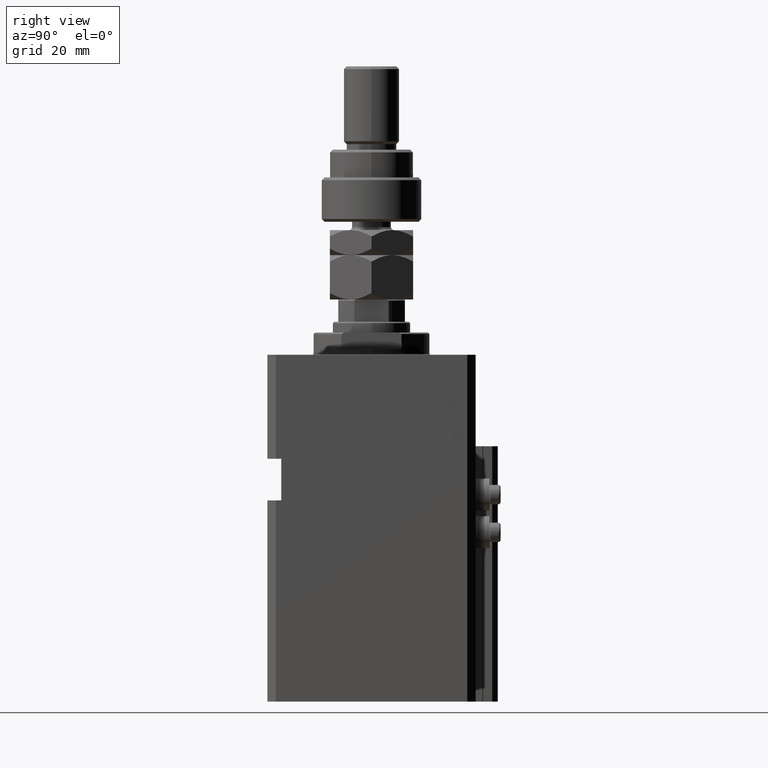
[diagram: clean part render]
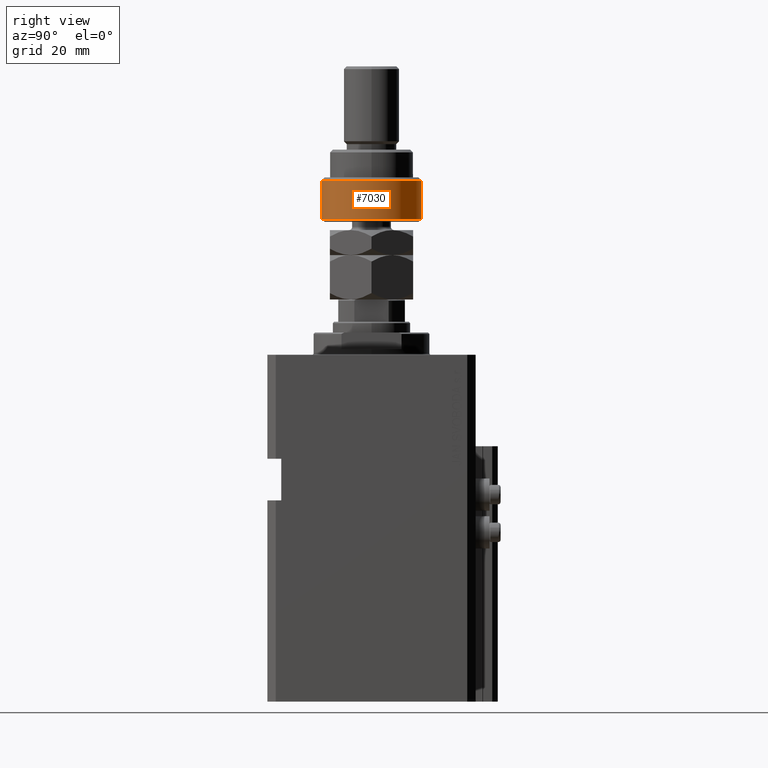
[diagram: same view with one face highlighted and labeled with its STEP entity id]
A machine part, right view. The second image highlights one B-rep face of the part: STEP entity #7030.
In plain terms, the highlighted cylindrical surface (partial cylindrical patch) has radius 18 mm, axis along (-0, -0, -1).
Its self-contained STEP definition (entity closure, byte-faithful):
#95 = CIRCLE ( 'NONE', #31072, 18.00000000000000000 ) ;
#1472 = ORIENTED_EDGE ( 'NONE', *, *, #8063, .F. ) ;
#3595 = CARTESIAN_POINT ( 'NONE',  ( -16.36306817195357155, 7.500000000000000000, 14.99999999999999645 ) ) ;
#5436 = VERTEX_POINT ( 'NONE', #3595 ) ;
#5465 = AXIS2_PLACEMENT_3D ( 'NONE', #18401, #29409, #22242 ) ;
#5532 = EDGE_CURVE ( 'NONE', #5991, #37166, #19901, .T. ) ;
#5991 = VERTEX_POINT ( 'NONE', #38170 ) ;
#6241 = VERTEX_POINT ( 'NONE', #39326 ) ;
#7030 = ADVANCED_FACE ( 'NONE', ( #48630 ), #45050, .T. ) ;
#8063 = EDGE_CURVE ( 'NONE', #5436, #45194, #39399, .T. ) ;
#9230 = EDGE_LOOP ( 'NONE', ( #1472, #20362, #35691, #40050, #25209 ) ) ;
#10362 = CIRCLE ( 'NONE', #5465, 18.00000000000000000 ) ;
#13848 = EDGE_CURVE ( 'NONE', #5436, #5991, #50089, .T. ) ;
#14505 = DIRECTION ( 'NONE',  ( 1.000000000000000000, 0.000000000000000000, 0.000000000000000000 ) ) ;
#18401 = CARTESIAN_POINT ( 'NONE',  ( 0.000000000000000000, 0.000000000000000000, 1.000000000000011324 ) ) ;
#18575 = CARTESIAN_POINT ( 'NONE',  ( 0.000000000000000000, 0.000000000000000000, 1.000000000000011324 ) ) ;
#19011 = CARTESIAN_POINT ( 'NONE',  ( 0.000000000000000000, 0.000000000000000000, 14.99999999999999645 ) ) ;
#19901 = LINE ( 'NONE', #36476, #38365 ) ;
#20362 = ORIENTED_EDGE ( 'NONE', *, *, #13848, .T. ) ;
#20480 = CARTESIAN_POINT ( 'NONE',  ( -16.36306817195357155, 7.500000000000000000, 17.50000000000000000 ) ) ;
#21804 = DIRECTION ( 'NONE',  ( -1.000000000000000000, 0.000000000000000000, 0.000000000000000000 ) ) ;
#22242 = DIRECTION ( 'NONE',  ( 1.000000000000000000, 0.000000000000000000, 0.000000000000000000 ) ) ;
#23739 = DIRECTION ( 'NONE',  ( -0.000000000000000000, -0.000000000000000000, -1.000000000000000000 ) ) ;
#24349 = CARTESIAN_POINT ( 'NONE',  ( -16.36306817195357155, -7.500000000000000000, 1.000000000000011324 ) ) ;
#25130 = CARTESIAN_POINT ( 'NONE',  ( 0.000000000000000000, 0.000000000000000000, 16.00000000000000000 ) ) ;
#25209 = ORIENTED_EDGE ( 'NONE', *, *, #27623, .T. ) ;
#27623 = EDGE_CURVE ( 'NONE', #6241, #45194, #10362, .T. ) ;
#29222 = DIRECTION ( 'NONE',  ( -0.000000000000000000, -0.000000000000000000, -1.000000000000000000 ) ) ;
#29409 = DIRECTION ( 'NONE',  ( -0.000000000000000000, -0.000000000000000000, 1.000000000000000000 ) ) ;
#29720 = AXIS2_PLACEMENT_3D ( 'NONE', #19011, #45583, #34602 ) ;
#31072 = AXIS2_PLACEMENT_3D ( 'NONE', #18575, #42327, #14505 ) ;
#31108 = VECTOR ( 'NONE', #32236, 1000.000000000000000 ) ;
#32236 = DIRECTION ( 'NONE',  ( -0.000000000000000000, -0.000000000000000000, -1.000000000000000000 ) ) ;
#34221 = CARTESIAN_POINT ( 'NONE',  ( -16.36306817195357155, 7.500000000000000000, 1.000000000000011324 ) ) ;
#34602 = DIRECTION ( 'NONE',  ( 1.000000000000000000, 0.000000000000000000, 0.000000000000000000 ) ) ;
#35144 = AXIS2_PLACEMENT_3D ( 'NONE', #25130, #29222, #21804 ) ;
#35691 = ORIENTED_EDGE ( 'NONE', *, *, #5532, .T. ) ;
#36476 = CARTESIAN_POINT ( 'NONE',  ( -16.36306817195357155, -7.500000000000000000, 17.50000000000000000 ) ) ;
#37166 = VERTEX_POINT ( 'NONE', #24349 ) ;
#38170 = CARTESIAN_POINT ( 'NONE',  ( -16.36306817195357155, -7.500000000000000000, 14.99999999999999645 ) ) ;
#38365 = VECTOR ( 'NONE', #23739, 1000.000000000000000 ) ;
#39326 = CARTESIAN_POINT ( 'NONE',  ( 18.00000000000000000, 0.000000000000000000, 1.000000000000011324 ) ) ;
#39399 = LINE ( 'NONE', #20480, #31108 ) ;
#40050 = ORIENTED_EDGE ( 'NONE', *, *, #47893, .T. ) ;
#42327 = DIRECTION ( 'NONE',  ( -0.000000000000000000, -0.000000000000000000, 1.000000000000000000 ) ) ;
#45050 = CYLINDRICAL_SURFACE ( 'NONE', #35144, 18.00000000000000000 ) ;
#45194 = VERTEX_POINT ( 'NONE', #34221 ) ;
#45583 = DIRECTION ( 'NONE',  ( 0.000000000000000000, 0.000000000000000000, -1.000000000000000000 ) ) ;
#47893 = EDGE_CURVE ( 'NONE', #37166, #6241, #95, .T. ) ;
#48630 = FACE_OUTER_BOUND ( 'NONE', #9230, .T. ) ;
#50089 = CIRCLE ( 'NONE', #29720, 18.00000000000000000 ) ;